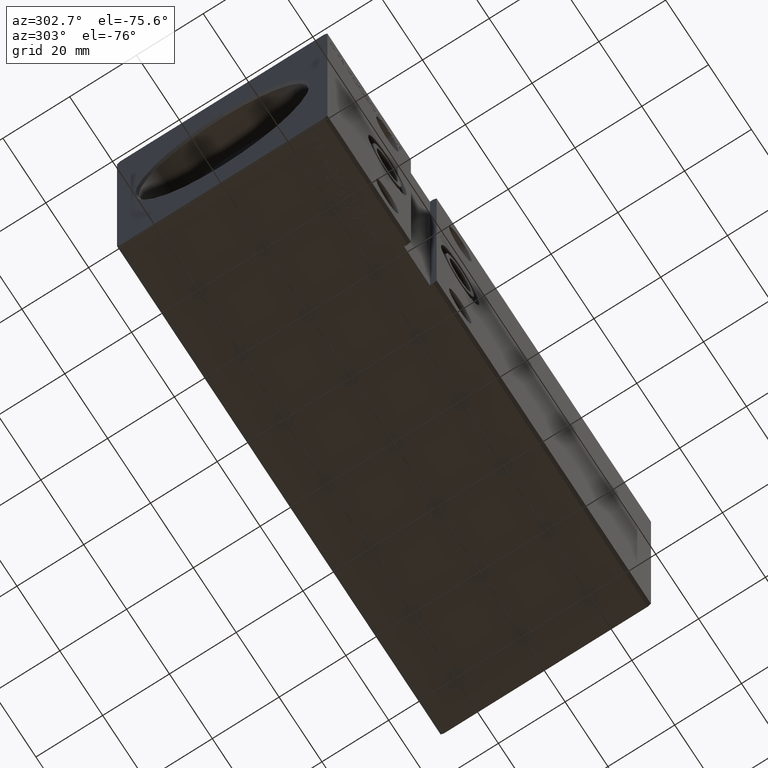
[diagram: clean part render]
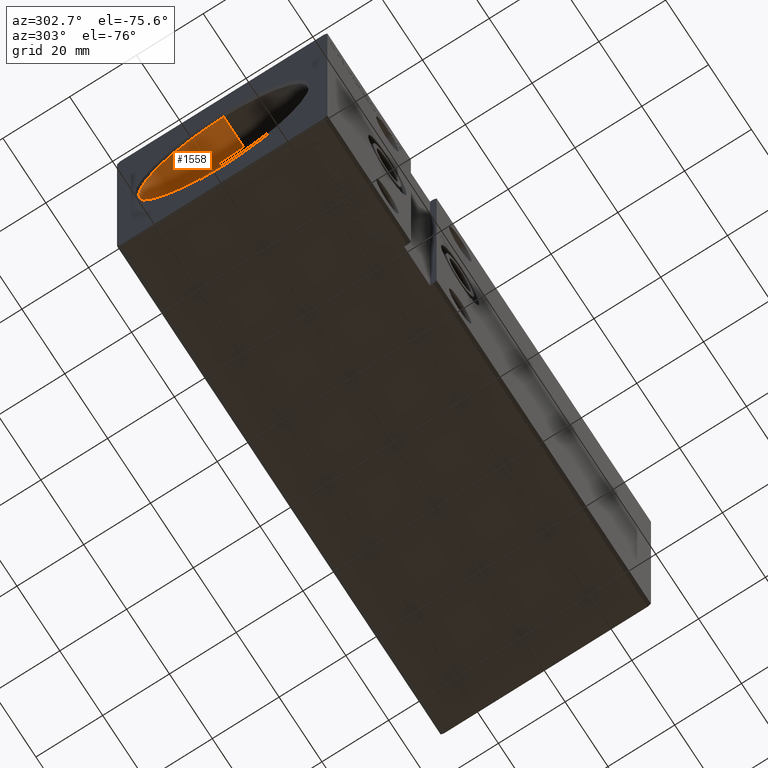
[diagram: same view with one face highlighted and labeled with its STEP entity id]
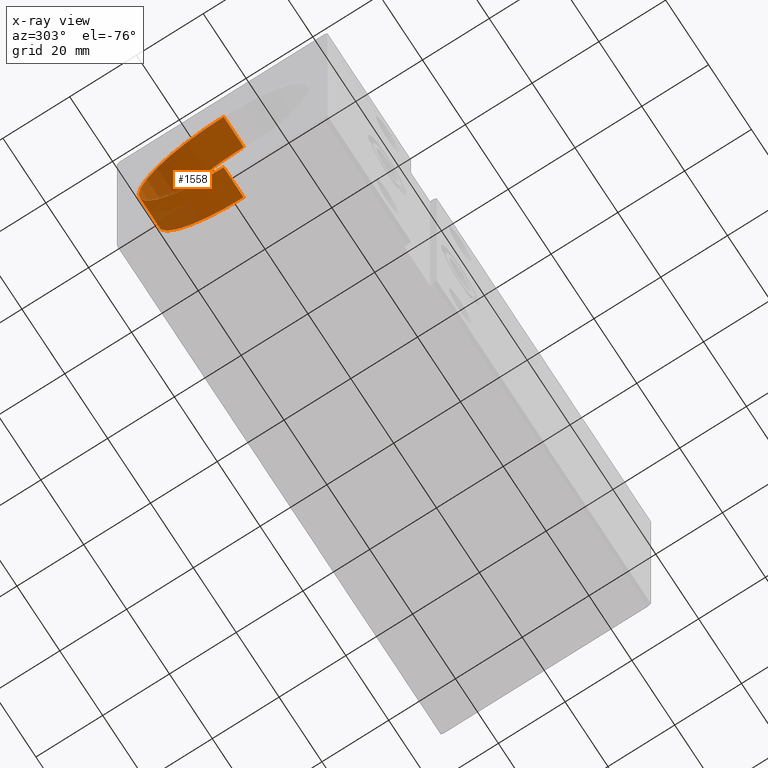
[diagram: x-ray of the same camera — body ghosted, the highlighted face saturated]
A machine part, auxiliary view. The second image highlights one B-rep face of the part: STEP entity #1558.
The next image is the same camera in x-ray: the body ghosted, the highlighted face saturated — about 14% of this face is hidden behind the body in this view.
In plain terms, the highlighted cylindrical surface (partial cylindrical patch) has radius 25.5 mm, axis along (-1, -0, -0).
Its self-contained STEP definition (entity closure, byte-faithful):
#239 = LINE ( 'NONE', #21219, #38589 ) ;
#1558 = ADVANCED_FACE ( 'NONE', ( #26265 ), #1997, .F. ) ;
#1593 = DIRECTION ( 'NONE',  ( -1.000000000000000000, 0.000000000000000000, 0.000000000000000000 ) ) ;
#1997 = CYLINDRICAL_SURFACE ( 'NONE', #36662, 25.50000000000000000 ) ;
#3151 = CARTESIAN_POINT ( 'NONE',  ( 0.7000000000000339284, 3.122849337825750222E-15, -25.50000000000000000 ) ) ;
#4524 = EDGE_CURVE ( 'NONE', #30977, #15207, #239, .T. ) ;
#7047 = VERTEX_POINT ( 'NONE', #3151 ) ;
#10258 = EDGE_LOOP ( 'NONE', ( #31626, #14471, #28641, #34718 ) ) ;
#10747 = CARTESIAN_POINT ( 'NONE',  ( 0.7000000000000339284, 0.000000000000000000, 25.50000000000000000 ) ) ;
#13215 = VECTOR ( 'NONE', #33401, 1000.000000000000000 ) ;
#13512 = CARTESIAN_POINT ( 'NONE',  ( 0.7000000000000339284, 0.000000000000000000, 0.000000000000000000 ) ) ;
#14471 = ORIENTED_EDGE ( 'NONE', *, *, #23886, .F. ) ;
#14599 = EDGE_CURVE ( 'NONE', #15207, #7047, #16509, .T. ) ;
#15091 = EDGE_CURVE ( 'NONE', #18187, #7047, #20860, .T. ) ;
#15207 = VERTEX_POINT ( 'NONE', #10747 ) ;
#15353 = AXIS2_PLACEMENT_3D ( 'NONE', #25644, #31194, #15981 ) ;
#15981 = DIRECTION ( 'NONE',  ( 0.000000000000000000, 0.000000000000000000, 1.000000000000000000 ) ) ;
#16509 = CIRCLE ( 'NONE', #17164, 25.50000000000000000 ) ;
#17164 = AXIS2_PLACEMENT_3D ( 'NONE', #13512, #1593, #38400 ) ;
#18187 = VERTEX_POINT ( 'NONE', #37889 ) ;
#20860 = LINE ( 'NONE', #40164, #13215 ) ;
#21219 = CARTESIAN_POINT ( 'NONE',  ( 10.00000000000000000, 0.000000000000000000, 25.50000000000000000 ) ) ;
#23886 = EDGE_CURVE ( 'NONE', #30977, #18187, #33097, .T. ) ;
#25644 = CARTESIAN_POINT ( 'NONE',  ( 10.00000000000000000, 0.000000000000000000, 0.000000000000000000 ) ) ;
#26059 = CARTESIAN_POINT ( 'NONE',  ( 10.00000000000000000, 0.000000000000000000, 0.000000000000000000 ) ) ;
#26265 = FACE_OUTER_BOUND ( 'NONE', #10258, .T. ) ;
#28641 = ORIENTED_EDGE ( 'NONE', *, *, #4524, .T. ) ;
#30977 = VERTEX_POINT ( 'NONE', #31609 ) ;
#31194 = DIRECTION ( 'NONE',  ( -1.000000000000000000, 0.000000000000000000, 0.000000000000000000 ) ) ;
#31609 = CARTESIAN_POINT ( 'NONE',  ( 10.00000000000000000, 0.000000000000000000, 25.50000000000000000 ) ) ;
#31626 = ORIENTED_EDGE ( 'NONE', *, *, #15091, .F. ) ;
#33097 = CIRCLE ( 'NONE', #15353, 25.50000000000000000 ) ;
#33401 = DIRECTION ( 'NONE',  ( -1.000000000000000000, -0.000000000000000000, -0.000000000000000000 ) ) ;
#33760 = DIRECTION ( 'NONE',  ( -1.000000000000000000, -0.000000000000000000, -0.000000000000000000 ) ) ;
#34718 = ORIENTED_EDGE ( 'NONE', *, *, #14599, .T. ) ;
#35913 = DIRECTION ( 'NONE',  ( 0.000000000000000000, 0.000000000000000000, 1.000000000000000000 ) ) ;
#36662 = AXIS2_PLACEMENT_3D ( 'NONE', #26059, #39210, #35913 ) ;
#37889 = CARTESIAN_POINT ( 'NONE',  ( 10.00000000000000000, 3.122849337825750222E-15, -25.50000000000000000 ) ) ;
#38400 = DIRECTION ( 'NONE',  ( 0.000000000000000000, 0.000000000000000000, -1.000000000000000000 ) ) ;
#38589 = VECTOR ( 'NONE', #33760, 1000.000000000000000 ) ;
#39210 = DIRECTION ( 'NONE',  ( -1.000000000000000000, -0.000000000000000000, -0.000000000000000000 ) ) ;
#40164 = CARTESIAN_POINT ( 'NONE',  ( 10.00000000000000000, 3.122849337825750222E-15, -25.50000000000000000 ) ) ;